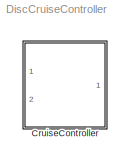
MODEL DiscCruiseController
KIND model
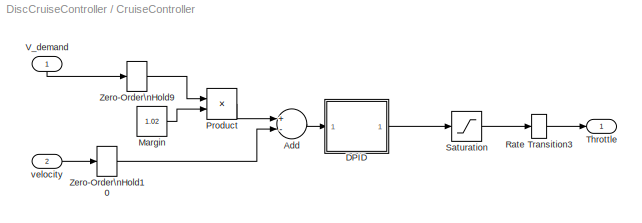
BLOCK [SubSystem] CruiseController
  FunctionWithSeparateData = off
  MaskHideContents = off
  MinAlgLoopOccurrences = off
  Opaque = off
  Ports = [2, 1]
  PropExecContextOutsideSubsystem = off
  RTWSystemCode = Auto
  RequestExecContextInheritance = off
  SID = 1
BLOCK [Sum] CruiseController/Add
  InputSameDT = off
  Inputs = +-
  OutDataTypeStr = Inherit: Inherit via internal rule
  Ports = [2, 1]
  SID = 4
  SaturateOnIntegerOverflow = off
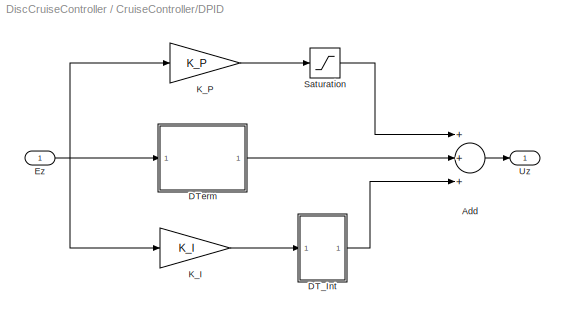
BLOCK [SubSystem] CruiseController/DPID
  AncestorBlock = suspension_lib/PID:H(z)
  FunctionWithSeparateData = off
  MaskCallbackString = ||||||||||||
  MaskEnableString = on,on,on,on,on,on,on,on,on,on,on,on,on
  MaskHideContents = off
  MaskIconFrame = on
  MaskIconOpaque = on
  MaskIconRotate = none
  MaskIconUnits = autoscale
  MaskPortRotate = default
  MaskPromptString = Ts (seconds)|K_P|K_D|tau_D|P_MAX|P_MIN|X_DMAX|X_DMIN|X_D0|K_I|X_IMAX|X_IMIN|X_I0
  MaskStyleString = edit,edit,edit,edit,edit,edit,edit,edit,edit,edit,edit,edit,edit
  MaskToolTipString = on,on,on,on,on,on,on,on,on,on,on,on,on
  MaskTunableValueString = on,on,on,on,on,on,on,on,on,on,on,on,on
  MaskValueString = .1|7|0|.1/pi|1500*2|-1500*2|1500*2|-1500*2|0|0|1500|-1500|0
  MaskVariables = Ts=@1;K_P=@2;K_D=@3;tau_D=@4;P_MAX=@5;P_MIN=@6;X_DMAX=@7;X_DMIN=@8;X_D0=@9;K_I=@10;X_IMAX=@11;X_IMIN=@12;X_I0=@13;
  MaskVisibilityString = on,on,on,on,on,on,on,on,on,on,on,on,on
  MinAlgLoopOccurrences = off
  Opaque = off
  Ports = [1, 1]
  PropExecContextOutsideSubsystem = off
  RTWSystemCode = Auto
  RequestExecContextInheritance = off
  SID = 5
BLOCK [Sum] CruiseController/DPID/Add
  InputSameDT = off
  Inputs = +++
  OutDataTypeStr = Inherit: Inherit via internal rule
  Ports = [3, 1]
  SID = 5:25
  SaturateOnIntegerOverflow = off
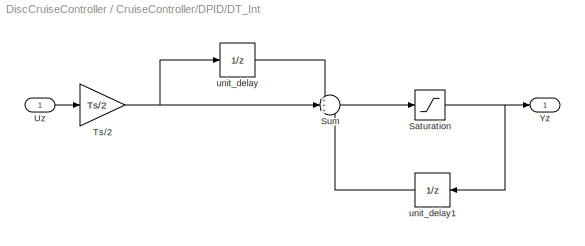
BLOCK [SubSystem] CruiseController/DPID/DT_Int
  AncestorBlock = suspension_lib/DT_Integrator
  FunctionWithSeparateData = off
  MaskCallbackString = |||
  MaskEnableString = on,on,on,on
  MaskHideContents = off
  MaskIconFrame = on
  MaskIconOpaque = on
  MaskIconRotate = none
  MaskIconUnits = autoscale
  MaskPortRotate = default
  MaskPromptString = Ts (seconds)|X0|X_MIN|X_MAX
  MaskStyleString = edit,edit,edit,edit
  MaskToolTipString = on,on,on,on
  MaskTunableValueString = on,on,on,on
  MaskValueString = Ts|X_I0|X_IMIN|X_IMAX
  MaskVariables = Ts=@1;X0=@2;X_MIN=@3;X_MAX=@4;
  MaskVisibilityString = on,on,on,on
  MinAlgLoopOccurrences = off
  Opaque = off
  Ports = [1, 1]
  PropExecContextOutsideSubsystem = off
  RTWSystemCode = Auto
  RequestExecContextInheritance = off
  SID = 5:33
BLOCK [Saturate] CruiseController/DPID/DT_Int/Saturation
  InputPortMap = u0
  LowerLimit = X_MIN
  Ports = [1, 1]
  SID = 5:33:17
  UpperLimit = X_MAX
BLOCK [Sum] CruiseController/DPID/DT_Int/Sum
  IconShape = round
  InputSameDT = off
  Inputs = +++
  OutDataTypeStr = Inherit: Inherit via internal rule
  Ports = [3, 1]
  SID = 5:33:18
  SaturateOnIntegerOverflow = off
BLOCK [Gain] CruiseController/DPID/DT_Int/Ts//2
  Gain = Ts/2
  OutDataTypeStr = Inherit: Inherit via internal rule
  ParamDataTypeStr = Inherit: Inherit via internal rule
  SID = 5:33:19
  SaturateOnIntegerOverflow = off
BLOCK [Inport] CruiseController/DPID/DT_Int/Uz
  IconDisplay = Port number
  SID = 5:33:16
BLOCK [Outport] CruiseController/DPID/DT_Int/Yz
  IconDisplay = Port number
  SID = 5:33:22
BLOCK [UnitDelay] CruiseController/DPID/DT_Int/unit_delay
  InputProcessing = Elements as channels (sample based)
  SID = 5:33:20
  SampleTime = Ts
BLOCK [UnitDelay] CruiseController/DPID/DT_Int/unit_delay1
  InputProcessing = Elements as channels (sample based)
  SID = 5:33:21
  SampleTime = Ts
  X0 = X0
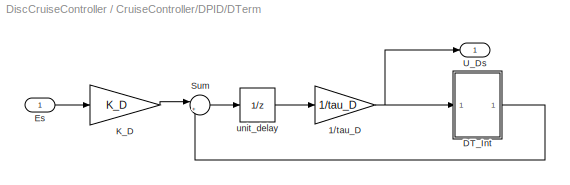
BLOCK [SubSystem] CruiseController/DPID/DTerm
  FunctionWithSeparateData = off
  MaskHideContents = off
  MinAlgLoopOccurrences = off
  Opaque = off
  Ports = [1, 1]
  PropExecContextOutsideSubsystem = off
  RTWSystemCode = Auto
  RequestExecContextInheritance = off
  SID = 5:26
BLOCK [Gain] CruiseController/DPID/DTerm/1//tau_D
  Gain = 1/tau_D
  OutDataTypeStr = Inherit: Inherit via internal rule
  ParamDataTypeStr = Inherit: Inherit via internal rule
  SID = 5:28
  SaturateOnIntegerOverflow = off
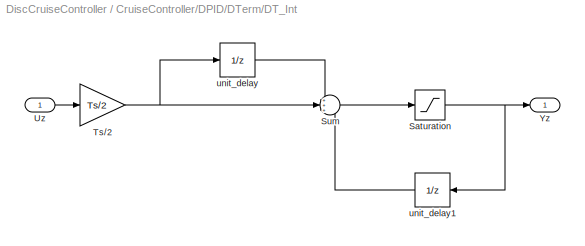
BLOCK [SubSystem] CruiseController/DPID/DTerm/DT_Int
  AncestorBlock = suspension_lib/DT_Integrator
  FunctionWithSeparateData = off
  MaskCallbackString = |||
  MaskEnableString = on,on,on,on
  MaskHideContents = off
  MaskIconFrame = on
  MaskIconOpaque = on
  MaskIconRotate = none
  MaskIconUnits = autoscale
  MaskPortRotate = default
  MaskPromptString = Ts (seconds)|X0|X_MIN|X_MAX
  MaskStyleString = edit,edit,edit,edit
  MaskToolTipString = on,on,on,on
  MaskTunableValueString = on,on,on,on
  MaskValueString = Ts|X_D0|X_DMIN*tau_D|X_DMAX*tau_D
  MaskVariables = Ts=@1;X0=@2;X_MIN=@3;X_MAX=@4;
  MaskVisibilityString = on,on,on,on
  MinAlgLoopOccurrences = off
  Opaque = off
  Ports = [1, 1]
  PropExecContextOutsideSubsystem = off
  RTWSystemCode = Auto
  RequestExecContextInheritance = off
  SID = 5:29
BLOCK [Saturate] CruiseController/DPID/DTerm/DT_Int/Saturation
  InputPortMap = u0
  LowerLimit = X_MIN
  Ports = [1, 1]
  SID = 5:29:17
  UpperLimit = X_MAX
BLOCK [Sum] CruiseController/DPID/DTerm/DT_Int/Sum
  IconShape = round
  InputSameDT = off
  Inputs = +++
  OutDataTypeStr = Inherit: Inherit via internal rule
  Ports = [3, 1]
  SID = 5:29:18
  SaturateOnIntegerOverflow = off
BLOCK [Gain] CruiseController/DPID/DTerm/DT_Int/Ts//2
  Gain = Ts/2
  OutDataTypeStr = Inherit: Inherit via internal rule
  ParamDataTypeStr = Inherit: Inherit via internal rule
  SID = 5:29:19
  SaturateOnIntegerOverflow = off
BLOCK [Inport] CruiseController/DPID/DTerm/DT_Int/Uz
  IconDisplay = Port number
  SID = 5:29:16
BLOCK [Outport] CruiseController/DPID/DTerm/DT_Int/Yz
  IconDisplay = Port number
  SID = 5:29:22
BLOCK [UnitDelay] CruiseController/DPID/DTerm/DT_Int/unit_delay
  InputProcessing = Elements as channels (sample based)
  SID = 5:29:20
  SampleTime = Ts
BLOCK [UnitDelay] CruiseController/DPID/DTerm/DT_Int/unit_delay1
  InputProcessing = Elements as channels (sample based)
  SID = 5:29:21
  SampleTime = Ts
  X0 = X0
BLOCK [Inport] CruiseController/DPID/DTerm/Es
  IconDisplay = Port number
  SID = 5:27
BLOCK [Gain] CruiseController/DPID/DTerm/K_D
  Gain = K_D
  OutDataTypeStr = Inherit: Inherit via internal rule
  ParamDataTypeStr = Inherit: Inherit via internal rule
  SID = 5:30
  SaturateOnIntegerOverflow = off
BLOCK [Sum] CruiseController/DPID/DTerm/Sum
  IconShape = round
  InputSameDT = off
  Inputs = |+-
  OutDataTypeStr = Inherit: Inherit via internal rule
  Ports = [2, 1]
  SID = 5:31
  SaturateOnIntegerOverflow = off
BLOCK [Outport] CruiseController/DPID/DTerm/U_Ds
  IconDisplay = Port number
  SID = 5:32
BLOCK [UnitDelay] CruiseController/DPID/DTerm/unit_delay
  InputProcessing = Elements as channels (sample based)
  SID = 5:47
  SampleTime = Ts
BLOCK [Inport] CruiseController/DPID/Ez
  IconDisplay = Port number
  SID = 5:24
BLOCK [Gain] CruiseController/DPID/K_I
  Gain = K_I
  OutDataTypeStr = Inherit: Inherit via internal rule
  ParamDataTypeStr = Inherit: Inherit via internal rule
  SID = 5:34
  SaturateOnIntegerOverflow = off
BLOCK [Gain] CruiseController/DPID/K_P
  Gain = K_P
  OutDataTypeStr = Inherit: Inherit via internal rule
  ParamDataTypeStr = Inherit: Inherit via internal rule
  SID = 5:35
  SaturateOnIntegerOverflow = off
BLOCK [Saturate] CruiseController/DPID/Saturation
  InputPortMap = u0
  LowerLimit = P_MIN
  Ports = [1, 1]
  SID = 5:45
  UpperLimit = P_MAX
BLOCK [Outport] CruiseController/DPID/Uz
  IconDisplay = Port number
  SID = 5:36
BLOCK [Constant] CruiseController/Margin
  SID = 6
  Value = 1.02
BLOCK [Product] CruiseController/Product
  InputSameDT = off
  OutDataTypeStr = Inherit: Inherit via internal rule
  Ports = [2, 1]
  SID = 7
  SaturateOnIntegerOverflow = off
BLOCK [RateTransition] CruiseController/Rate Transition3
  OutPortSampleTime = 0
  SID = 10
  X0 = 1
BLOCK [Saturate] CruiseController/Saturation
  InputPortMap = u0
  LowerLimit = 0
  Ports = [1, 1]
  SID = 8
  UpperLimit = 1
BLOCK [Outport] CruiseController/Throttle
  IconDisplay = Port number
  SID = 9
BLOCK [Inport] CruiseController/V_demand
  IconDisplay = Port number
  SID = 2
BLOCK [ZeroOrderHold] CruiseController/Zero-Order\nHold10
  Priority = -1
  SID = 12
  SampleTime = 0.1
BLOCK [ZeroOrderHold] CruiseController/Zero-Order\nHold9
  Priority = -1
  SID = 11
  SampleTime = 0.1
BLOCK [Inport] CruiseController/velocity
  IconDisplay = Port number
  Port = 2
  SID = 3
LINE CruiseController/Add:1 -> CruiseController/DPID:1
LINE CruiseController/DPID/Add:1 -> CruiseController/DPID/Uz:1
NET CruiseController/DPID/DT_Int/Saturation:1 -> CruiseController/DPID/DT_Int/Yz:1, CruiseController/DPID/DT_Int/unit_delay1:1
LINE CruiseController/DPID/DT_Int/Sum:1 -> CruiseController/DPID/DT_Int/Saturation:1
NET CruiseController/DPID/DT_Int/Ts//2:1 -> CruiseController/DPID/DT_Int/Sum:2, CruiseController/DPID/DT_Int/unit_delay:1
LINE CruiseController/DPID/DT_Int/Uz:1 -> CruiseController/DPID/DT_Int/Ts//2:1
LINE CruiseController/DPID/DT_Int/unit_delay1:1 -> CruiseController/DPID/DT_Int/Sum:3
LINE CruiseController/DPID/DT_Int/unit_delay:1 -> CruiseController/DPID/DT_Int/Sum:1
LINE CruiseController/DPID/DT_Int:1 -> CruiseController/DPID/Add:3
NET CruiseController/DPID/DTerm/1//tau_D:1 -> CruiseController/DPID/DTerm/DT_Int:1, CruiseController/DPID/DTerm/U_Ds:1
NET CruiseController/DPID/DTerm/DT_Int/Saturation:1 -> CruiseController/DPID/DTerm/DT_Int/Yz:1, CruiseController/DPID/DTerm/DT_Int/unit_delay1:1
LINE CruiseController/DPID/DTerm/DT_Int/Sum:1 -> CruiseController/DPID/DTerm/DT_Int/Saturation:1
NET CruiseController/DPID/DTerm/DT_Int/Ts//2:1 -> CruiseController/DPID/DTerm/DT_Int/Sum:2, CruiseController/DPID/DTerm/DT_Int/unit_delay:1
LINE CruiseController/DPID/DTerm/DT_Int/Uz:1 -> CruiseController/DPID/DTerm/DT_Int/Ts//2:1
LINE CruiseController/DPID/DTerm/DT_Int/unit_delay1:1 -> CruiseController/DPID/DTerm/DT_Int/Sum:3
LINE CruiseController/DPID/DTerm/DT_Int/unit_delay:1 -> CruiseController/DPID/DTerm/DT_Int/Sum:1
LINE CruiseController/DPID/DTerm/DT_Int:1 -> CruiseController/DPID/DTerm/Sum:2
LINE CruiseController/DPID/DTerm/Es:1 -> CruiseController/DPID/DTerm/K_D:1
LINE CruiseController/DPID/DTerm/K_D:1 -> CruiseController/DPID/DTerm/Sum:1
LINE CruiseController/DPID/DTerm/Sum:1 -> CruiseController/DPID/DTerm/unit_delay:1
LINE CruiseController/DPID/DTerm/unit_delay:1 -> CruiseController/DPID/DTerm/1//tau_D:1
LINE CruiseController/DPID/DTerm:1 -> CruiseController/DPID/Add:2
NET CruiseController/DPID/Ez:1 -> CruiseController/DPID/DTerm:1, CruiseController/DPID/K_I:1, CruiseController/DPID/K_P:1
LINE CruiseController/DPID/K_I:1 -> CruiseController/DPID/DT_Int:1
LINE CruiseController/DPID/K_P:1 -> CruiseController/DPID/Saturation:1
LINE CruiseController/DPID/Saturation:1 -> CruiseController/DPID/Add:1
LINE CruiseController/DPID:1 -> CruiseController/Saturation:1
LINE CruiseController/Margin:1 -> CruiseController/Product:2
LINE CruiseController/Product:1 -> CruiseController/Add:1
LINE CruiseController/Rate Transition3:1 -> CruiseController/Throttle:1
LINE CruiseController/Saturation:1 -> CruiseController/Rate Transition3:1
LINE CruiseController/V_demand:1 -> CruiseController/Zero-Order\nHold9:1
LINE CruiseController/Zero-Order\nHold10:1 -> CruiseController/Add:2
LINE CruiseController/Zero-Order\nHold9:1 -> CruiseController/Product:1
LINE CruiseController/velocity:1 -> CruiseController/Zero-Order\nHold10:1
note: NET lines group one-source signal fan-out (src -> all destinations, sorted); 1:1 wires keep LINE
